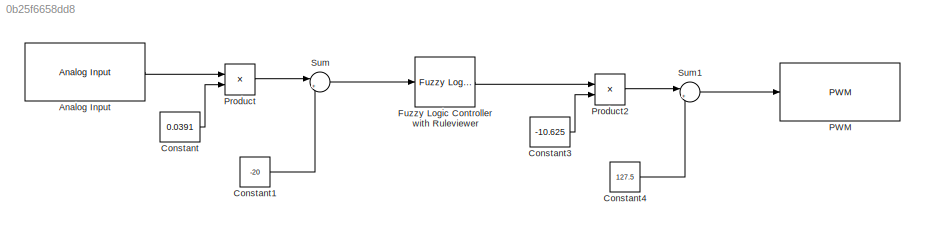
MODEL slx_0b25f6658dd8
KIND model
CONFIG AbsTol = auto
CONFIG EnableMultiTasking = on
CONFIG FixedStep = 0.05
CONFIG MaxStep = auto
CONFIG MinStep = auto
CONFIG RelTol = 1e-3
CONFIG SampleTimeConstraint = Unconstrained
CONFIG Solver = FixedStepAuto
CONFIG SolverName = FixedStepAuto
CONFIG StartTime = 0.0
CONFIG StopTime = inf
BLOCK [Reference] Analog Input  REF=arduinolib/Analog Input
  Ports = [0, 1]
  SourceBlock = arduinolib/Analog Input
  SourceProductBaseCode = ARDUINO
  SourceType = Arduino Analog Input
BLOCK [Constant] Constant
  Value = 0.0391
BLOCK [Constant] Constant1
  Value = -20
BLOCK [Constant] Constant3
  Value = -10.625
BLOCK [Constant] Constant4
  Value = 127.5
BLOCK [Reference] Fuzzy Logic Controller with Ruleviewer  REF=fuzblock/Fuzzy Logic   (lib defined in mdl_858b3b3e7478)
Controller 
with Ruleviewer
  Ports = [1, 1]
  SourceBlock = fuzblock/Fuzzy Logic \nController \nwith Ruleviewer
  SourceProductBaseCode = FL
  SourceType = Fuzzy Inference System
BLOCK [Reference] PWM  REF=arduinolib/PWM
  Ports = [1]
  SourceBlock = arduinolib/PWM
  SourceProductBaseCode = ARDUINO
  SourceType = Arduino PWM
BLOCK [Product] Product
  Ports = [2, 1]
BLOCK [Product] Product2
  Ports = [2, 1]
BLOCK [Sum] Sum
  Inputs = |++
  Ports = [2, 1]
BLOCK [Sum] Sum1
  Inputs = |++
  Ports = [2, 1]
LINE Analog Input:1 -> Product:1
LINE Constant1:1 -> Sum:2
LINE Constant3:1 -> Product2:2
LINE Constant4:1 -> Sum1:2
LINE Constant:1 -> Product:2
LINE Fuzzy Logic Controller with Ruleviewer:1 -> Product2:1
LINE Product2:1 -> Sum1:1
LINE Product:1 -> Sum:1
LINE Sum1:1 -> PWM:1
LINE Sum:1 -> Fuzzy Logic Controller with Ruleviewer:1
